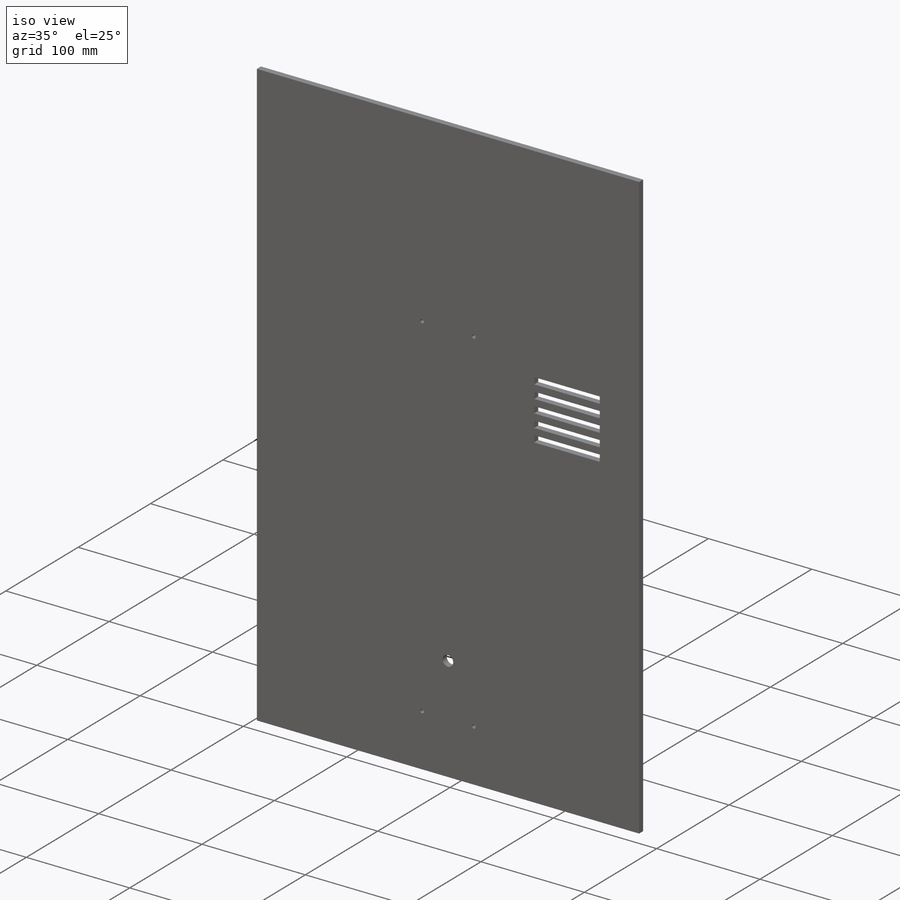
[diagram: iso view]
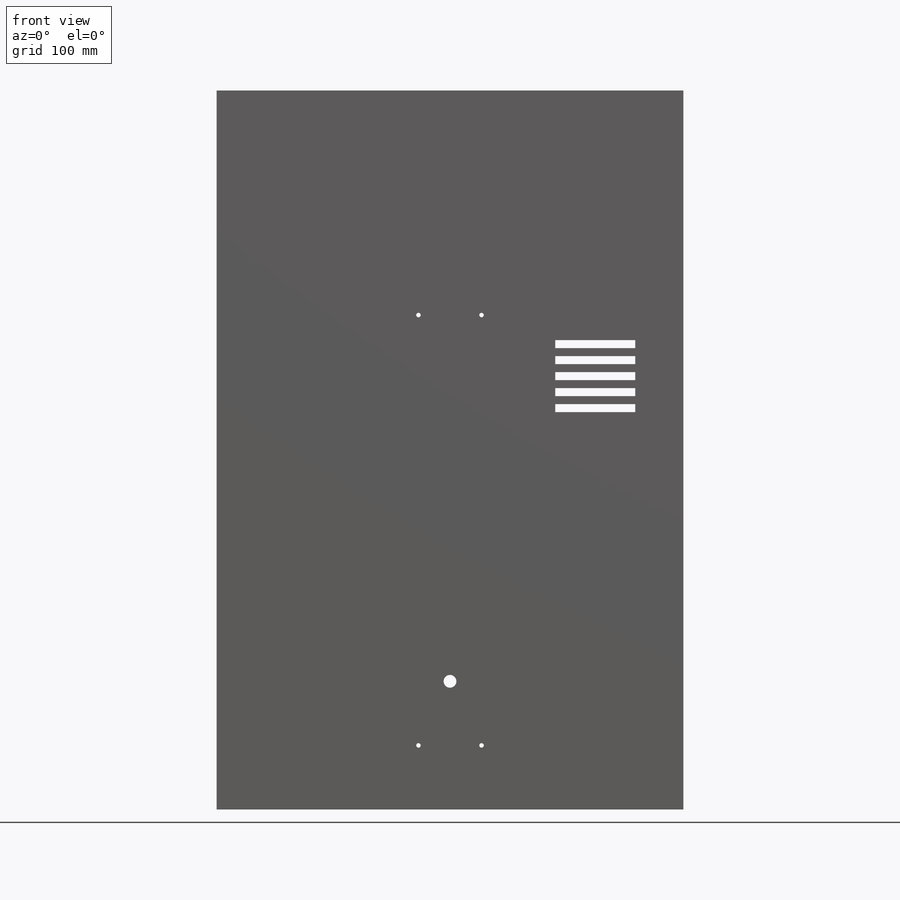
[diagram: front view]
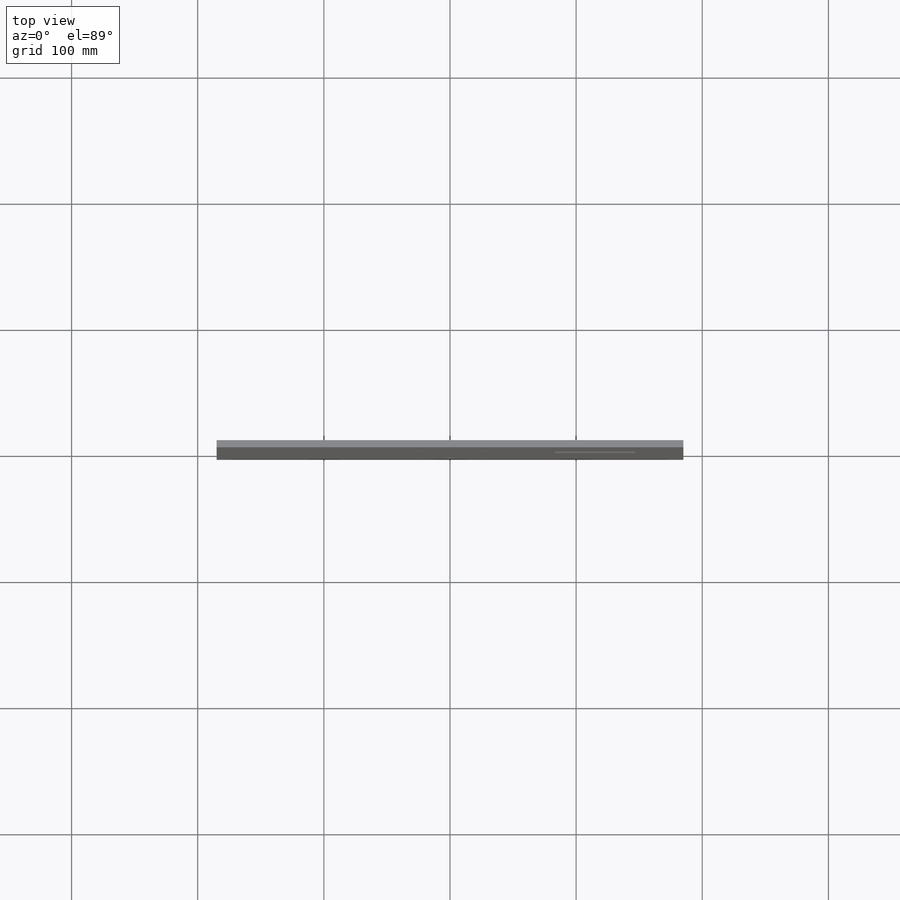
[diagram: top view]
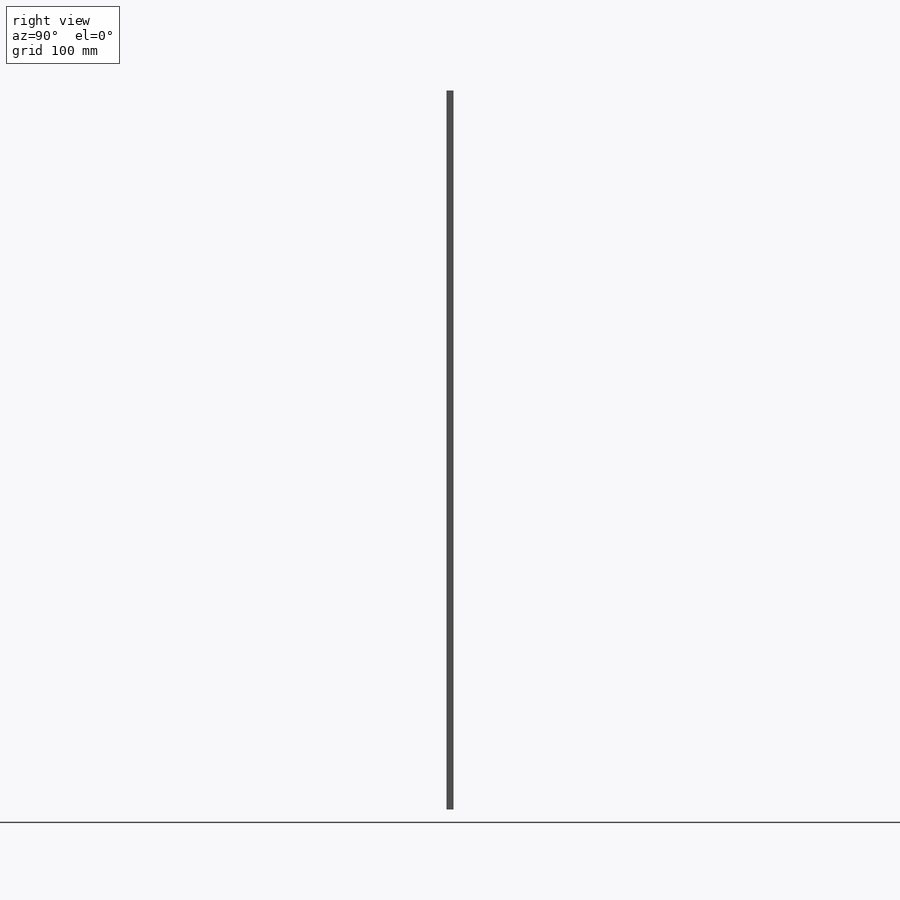
[diagram: right view]
SOLIDWORKS PART (.sldprt)
format: sldprt  version: not decoded by parser v0  size: 211,968 bytes
history: native  units: mm
features: sketch x4, cut_extrude x3, material x1, extrude x1, pattern_linear x1 (+13 scaffold rows collapsed)
feature tree (23):
  scaffold x13  (default folders/planes/origin — collapsed)
  material  "Acrylic (Medium-high impact)"
  sketch  "Sketch1"  dims[c1.D10=10.0mm c1.D11=10.0mm c1.D1=6.35mm c1.D2=370.0mm c1.D3=88.9mm c1.D4=88.9mm c1.D5=185.0mm c1.D6=3.175mm c1.D7=3.175mm c1.D8=6.35mm c1.D9=6.35mm c2.D1=370.0mm c2.D2=5.6388mm]
  extrude  "Boss-Extrude1"  Depth=570mm
  sketch  "Sketch2"  dims[D1=10.16mm D2=101.6mm D3=185.0mm]
  cut_extrude  "Cut-Extrude1"  [1 undecoded]
  sketch  "Sketch3"  dims[D1=3.556mm D2=160.0mm D3=160.0mm D4=160.0mm D5=160.0mm D6=50.8mm D7=178.0mm]
  cut_extrude  "Cut-Extrude2"  [1 undecoded]
  sketch  "Sketch4"  dims[D1=6.35mm D2=63.5mm D3=38.1mm D4=315.0mm]
  cut_extrude  "Cut-Extrude3"  [1 undecoded]
  pattern_linear  "LPattern1"  Count1=5 Count2=1 Spacing1=12.7mm Spacing2=10mm
decode coverage: 6 of 9 modeling features carry decoded parameters
note: 3 parameter values undecoded
summary: no parameter record found for 3 features
note: suppression state not decoded; provenance and decode notes live in map.json
